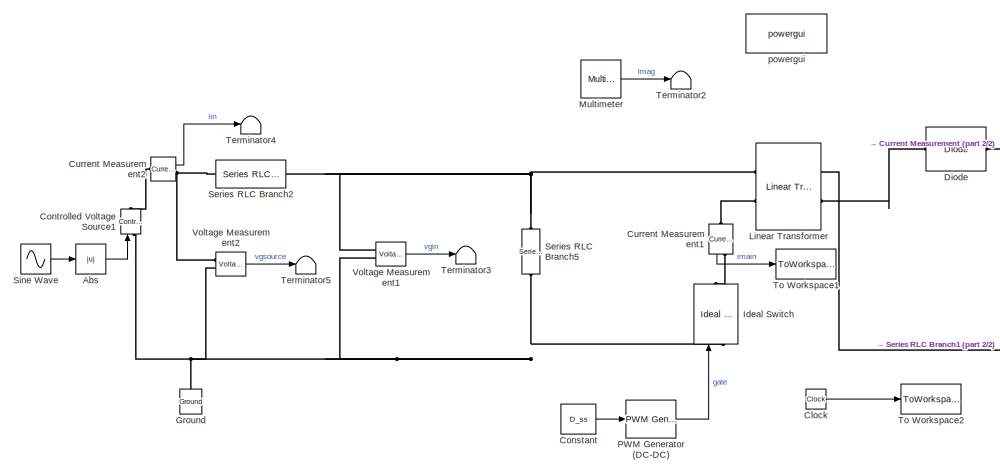
[diagram: root canvas - part 1/2, left side, full height]
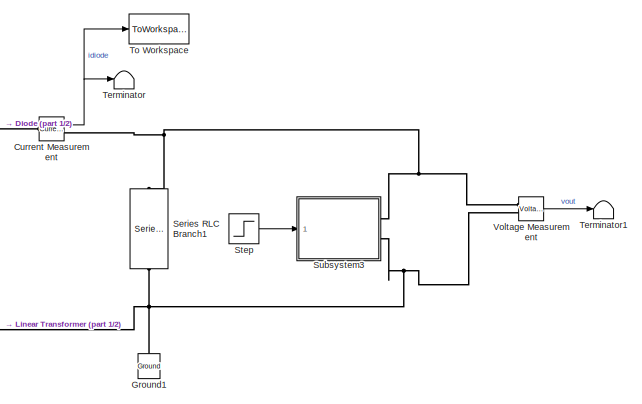
[diagram: root canvas - part 2/2, right side, full height]
MODEL slx_5af46d7b05f6
KIND model
CONFIG AbsTol = auto
CONFIG EnableMultiTasking = off
CONFIG FixedStep = Ts/1000
CONFIG MaxStep = 1e-4
CONFIG MinStep = auto
CONFIG RelTol = 1e-3
CONFIG SampleTimeConstraint = Unconstrained
CONFIG SolverName = FixedStepDiscrete
CONFIG StartTime = 0.0
CONFIG StopTime = 2/60
BLOCK [Abs] Abs
  SaturateOnIntegerOverflow = off
BLOCK [Clock] Clock
BLOCK [Constant] Constant
  Value = D_ss
BLOCK [Reference] Controlled Voltage Source1  REF=spsControlledVoltageSourceLib/Controlled Voltage Source
  NameLocation = right
  Ports = [1, 0, 0, 0, 0, 1, 1]
  SourceBlock = spsControlledVoltageSourceLib/Controlled Voltage Source
  SourceProductBaseCode = PS
  SourceType = Controlled Voltage Source
BLOCK [Reference] Current Measurement  REF=spsCurrentMeasurementLib/Current Measurement
  Ports = [0, 1, 0, 0, 0, 1, 1]
  SourceBlock = spsCurrentMeasurementLib/Current Measurement
  SourceProductBaseCode = PS
  SourceType = Current Measurement
  UserDataPersistent = on
BLOCK [Reference] Current Measurement1  REF=spsCurrentMeasurementLib/Current Measurement
  NameLocation = left
  Ports = [0, 1, 0, 0, 0, 1, 1]
  SourceBlock = spsCurrentMeasurementLib/Current Measurement
  SourceProductBaseCode = PS
  SourceType = Current Measurement
  UserDataPersistent = on
BLOCK [Reference] Current Measurement2  REF=spsCurrentMeasurementLib/Current Measurement
  Ports = [0, 1, 0, 0, 0, 1, 1]
  SourceBlock = spsCurrentMeasurementLib/Current Measurement
  SourceProductBaseCode = PS
  SourceType = Current Measurement
  UserDataPersistent = on
BLOCK [Reference] Diode  REF=spsDiodeLib/Diode
  Ports = [0, 0, 0, 0, 0, 1, 1]
  SourceBlock = spsDiodeLib/Diode
  SourceProductBaseCode = PS
  SourceType = Diode
BLOCK [Reference] Ground  REF=spsGroundLib/Ground
  NameLocation = right
  Ports = [0, 0, 0, 0, 0, 1]
  SourceBlock = spsGroundLib/Ground
  SourceProductBaseCode = PS
  SourceType = Ground
BLOCK [Reference] Ground1  REF=spsGroundLib/Ground
  NameLocation = right
  Ports = [0, 0, 0, 0, 0, 1]
  SourceBlock = spsGroundLib/Ground
  SourceProductBaseCode = PS
  SourceType = Ground
BLOCK [Reference] Ideal Switch  REF=spsIdealSwitchLib/Ideal Switch
  NameLocation = right
  Ports = [1, 0, 0, 0, 0, 1, 1]
  SourceBlock = spsIdealSwitchLib/Ideal Switch
  SourceProductBaseCode = PS
  SourceType = Ideal Switch
BLOCK [Reference] Linear Transformer  REF=spsLinearTransformerLib/Linear Transformer
  Ports = [0, 0, 0, 0, 0, 2, 2]
  SourceBlock = spsLinearTransformerLib/Linear Transformer
  SourceProductBaseCode = PS
  SourceType = Linear Transformer
BLOCK [Reference] Multimeter  REF=spsMultimeterLib/Multimeter
  Ports = [0, 1]
  SourceBlock = spsMultimeterLib/Multimeter
  SourceProductBaseCode = PS
  SourceType = MultimeterPSB
BLOCK [Reference] PWM Generator (DC-DC)  REF=spsPWMGeneratorDCDCLib/PWM Generator
(DC-DC)
  Ports = [1, 1]
  SourceBlock = spsPWMGeneratorDCDCLib/PWM Generator\n(DC-DC)
  SourceProductBaseCode = PS
  SourceType = PWM Generator (DC-DC)
BLOCK [Reference] Series RLC Branch1  REF=spsSeriesRLCBranchLib/Series RLC Branch
  NameLocation = left
  Ports = [0, 0, 0, 0, 0, 1, 1]
  SourceBlock = spsSeriesRLCBranchLib/Series RLC Branch
  SourceProductBaseCode = PS
  SourceType = Series RLC Branch
BLOCK [Reference] Series RLC Branch2  REF=spsSeriesRLCBranchLib/Series RLC Branch
  Ports = [0, 0, 0, 0, 0, 1, 1]
  SourceBlock = spsSeriesRLCBranchLib/Series RLC Branch
  SourceProductBaseCode = PS
  SourceType = Series RLC Branch
BLOCK [Reference] Series RLC Branch5  REF=spsSeriesRLCBranchLib/Series RLC Branch
  NameLocation = left
  Ports = [0, 0, 0, 0, 0, 1, 1]
  SourceBlock = spsSeriesRLCBranchLib/Series RLC Branch
  SourceProductBaseCode = PS
  SourceType = Series RLC Branch
BLOCK [Sin] Sine Wave
  Amplitude = Vin_rms*sqrt(2)
  Frequency = 2*pi*freq_in
  Ports = [0, 1]
  SampleTime = 0
BLOCK [Step] Step
  After = Pload
  Before = Pload
  SampleTime = 0
  Time = 1/60
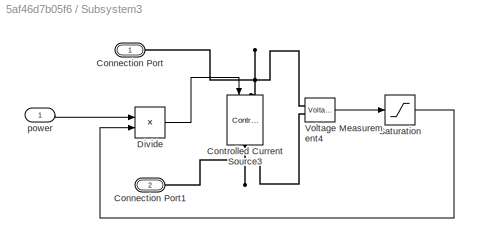
BLOCK [SubSystem] Subsystem3
  Ports = [1, 0, 0, 0, 0, 0, 2]
  RequestExecContextInheritance = off
BLOCK [PMIOPort] Subsystem3/Connection Port
  Side = Right
BLOCK [PMIOPort] Subsystem3/Connection Port1
  Port = 2
  Side = Right
BLOCK [Reference] Subsystem3/Controlled Current Source3  REF=spsControlledCurrentSourceLib/Controlled Current Source
  NameLocation = left
  Ports = [1, 0, 0, 0, 0, 1, 1]
  SourceBlock = spsControlledCurrentSourceLib/Controlled Current Source
  SourceProductBaseCode = PS
  SourceType = Controlled Current Source
BLOCK [Product] Subsystem3/Divide
  Inputs = */
  Ports = [2, 1]
BLOCK [Saturate] Subsystem3/Saturation
  LowerLimit = 1e-3
  UpperLimit = inf
BLOCK [Reference] Subsystem3/Voltage Measurement4  REF=spsVoltageMeasurementLib/Voltage Measurement
  Ports = [0, 1, 0, 0, 0, 2]
  SourceBlock = spsVoltageMeasurementLib/Voltage Measurement
  SourceProductBaseCode = PS
  SourceType = Voltage Measurement
BLOCK [Inport] Subsystem3/power
BLOCK [Terminator] Terminator
BLOCK [Terminator] Terminator1
BLOCK [Terminator] Terminator2
BLOCK [Terminator] Terminator3
BLOCK [Terminator] Terminator4
BLOCK [Terminator] Terminator5
BLOCK [ToWorkspace] To Workspace
  FixptAsFi = on
  MaxDataPoints = inf
  Ports = [1]
  SampleTime = -1
  VariableName = idiode
BLOCK [ToWorkspace] To Workspace1
  FixptAsFi = on
  MaxDataPoints = inf
  Ports = [1]
  SampleTime = -1
  VariableName = imain
BLOCK [ToWorkspace] To Workspace2
  FixptAsFi = on
  MaxDataPoints = inf
  Ports = [1]
  SampleTime = -1
  VariableName = time
BLOCK [Reference] Voltage Measurement  REF=spsVoltageMeasurementLib/Voltage Measurement
  Ports = [0, 1, 0, 0, 0, 2]
  SourceBlock = spsVoltageMeasurementLib/Voltage Measurement
  SourceProductBaseCode = PS
  SourceType = Voltage Measurement
  UserDataPersistent = on
BLOCK [Reference] Voltage Measurement1  REF=spsVoltageMeasurementLib/Voltage Measurement
  Ports = [0, 1, 0, 0, 0, 2]
  SourceBlock = spsVoltageMeasurementLib/Voltage Measurement
  SourceProductBaseCode = PS
  SourceType = Voltage Measurement
BLOCK [Reference] Voltage Measurement2  REF=spsVoltageMeasurementLib/Voltage Measurement
  Ports = [0, 1, 0, 0, 0, 2]
  SourceBlock = spsVoltageMeasurementLib/Voltage Measurement
  SourceProductBaseCode = PS
  SourceType = Voltage Measurement
BLOCK [Reference] powergui  REF=spspowerguiLib/powergui
  Ports = []
  Priority = 1
  SourceBlock = spspowerguiLib/powergui
  SourceProductBaseCode = PS
  SourceType = PSB option menu block
LINE Abs:1 -> Controlled Voltage Source1:1
LINE Clock:1 -> To Workspace2:1
LINE Constant:1 -> PWM Generator (DC-DC):1
LINE Current Measurement1:1 -> To Workspace1:1
LINE Current Measurement2:1 -> Terminator4:1
NET Current Measurement:1 -> Terminator:1, To Workspace:1
LINE Multimeter:1 -> Terminator2:1
LINE PWM Generator (DC-DC):1 -> Ideal Switch:1
LINE Sine Wave:1 -> Abs:1
LINE Step:1 -> Subsystem3:1
LINE Subsystem3/Divide:1 -> Subsystem3/Controlled Current Source3:1
LINE Subsystem3/Saturation:1 -> Subsystem3/Divide:2
LINE Subsystem3/Voltage Measurement4:1 -> Subsystem3/Saturation:1
LINE Subsystem3/power:1 -> Subsystem3/Divide:1
LINE Voltage Measurement1:1 -> Terminator3:1
LINE Voltage Measurement2:1 -> Terminator5:1
LINE Voltage Measurement:1 -> Terminator1:1
PNET net1: Controlled Voltage Source1:LConn1 -- Ground:LConn1 -- Ideal Switch:LConn1 -- Series RLC Branch5:RConn1 -- Voltage Measurement1:LConn2 -- Voltage Measurement2:LConn2
PLINE Controlled Voltage Source1:RConn1 -- Current Measurement2:LConn1
PLINE Current Measurement1:LConn1 -- Linear Transformer:LConn2
PLINE Current Measurement1:RConn1 -- Ideal Switch:RConn1
PNET net2: Current Measurement2:RConn1 -- Series RLC Branch2:LConn1 -- Voltage Measurement2:LConn1
PLINE Current Measurement:LConn1 -- Diode:RConn1
PNET net3: Current Measurement:RConn1 -- Series RLC Branch1:LConn1 -- Subsystem3:RConn1 -- Voltage Measurement:LConn1
PLINE Diode:LConn1 -- Linear Transformer:RConn2
PNET net4: Ground1:LConn1 -- Linear Transformer:RConn1 -- Series RLC Branch1:RConn1 -- Subsystem3:RConn2 -- Voltage Measurement:LConn2
PNET net5: Linear Transformer:LConn1 -- Series RLC Branch2:RConn1 -- Series RLC Branch5:LConn1 -- Voltage Measurement1:LConn1
PNET net6: Subsystem3/Connection Port1:RConn1 -- Subsystem3/Controlled Current Source3:RConn1 -- Subsystem3/Voltage Measurement4:LConn2
PNET net7: Subsystem3/Connection Port:RConn1 -- Subsystem3/Controlled Current Source3:LConn1 -- Subsystem3/Voltage Measurement4:LConn1
note: NET lines group one-source signal fan-out (src -> all destinations, sorted); 1:1 wires keep LINE; PNET lines group multi-terminal physical nets as a canonical sorted terminal list (undirected conserving connections); 2-terminal nets keep the pairwise PLINE form
